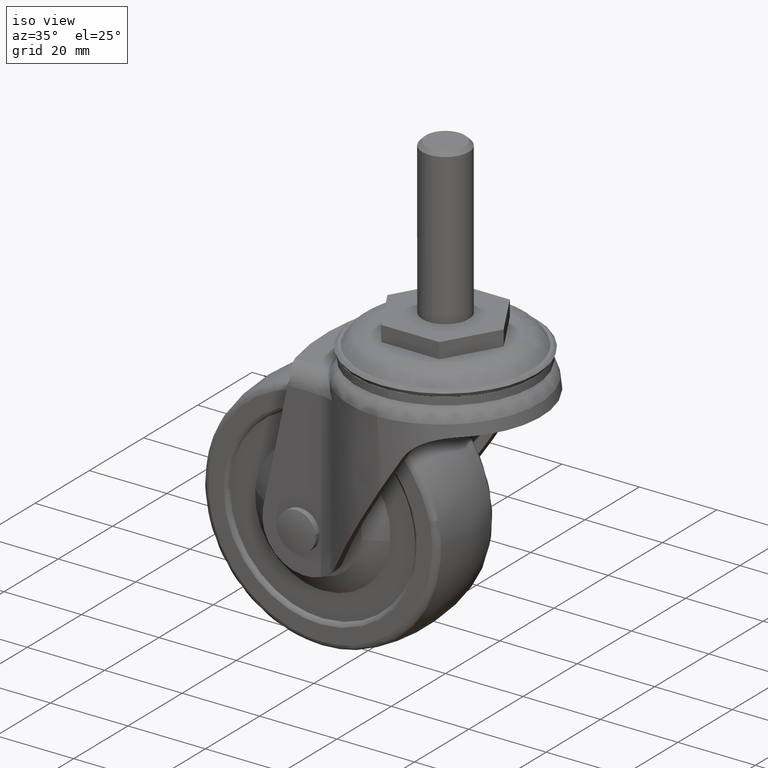
[diagram: clean part render]
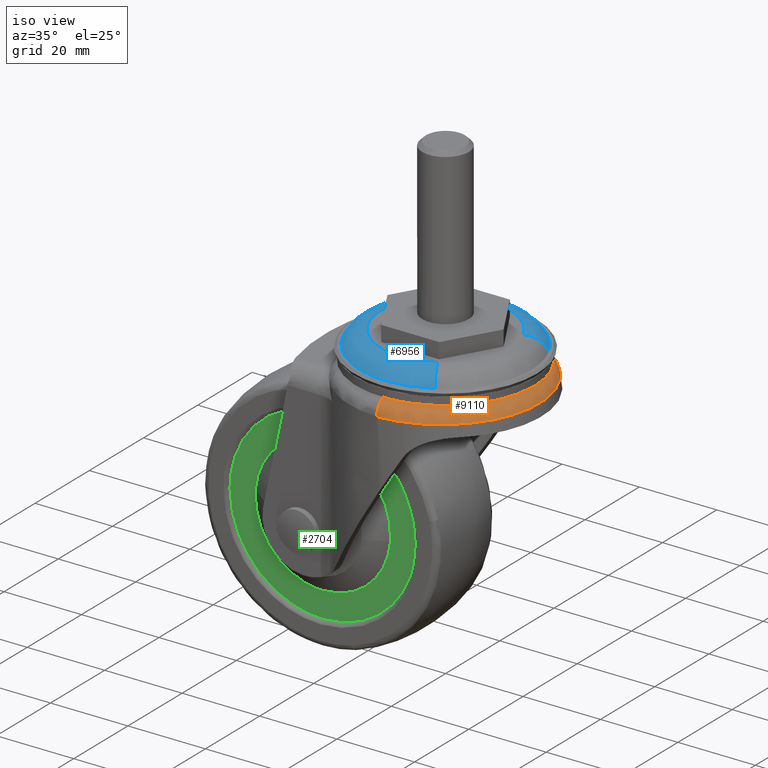
[diagram: same view with three faces highlighted in distinct colors, each labeled with its STEP entity id]
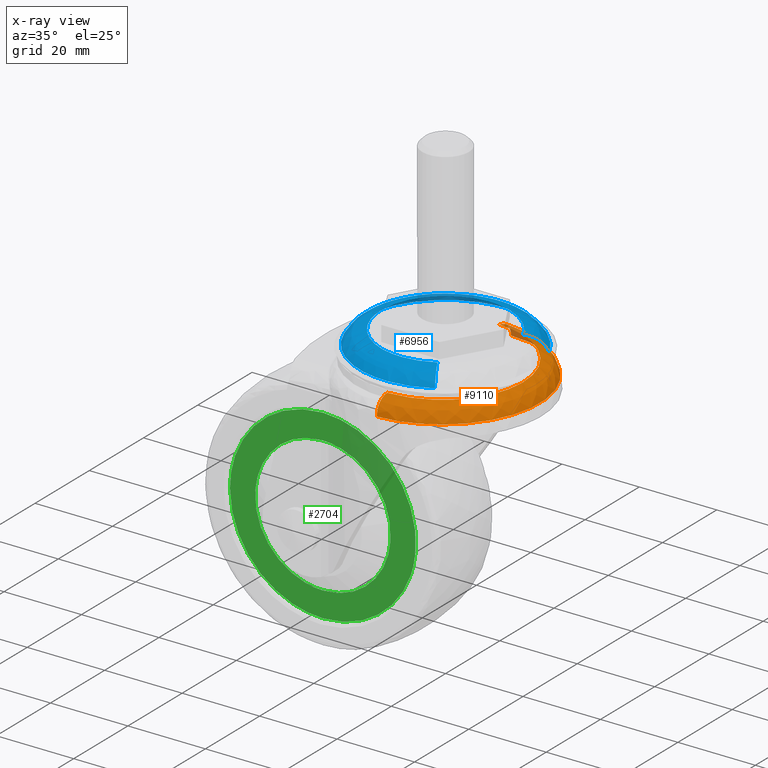
[diagram: x-ray of the same camera — body ghosted, the three highlighted faces saturated]
A machine part, iso view with three faces highlighted in distinct colors.
The next image is the same camera in x-ray (body ghosted, the three faces saturated) — at least one of them is partly hidden behind the body in this view.
Their STEP definitions:

[orange] entity #9110 — the highlighted face is a freeform B-spline surface patch.
#8668=CARTESIAN_POINT('',(-0.548214048981867,-20.742756840798400,-9.038143999999999));
#8669=VERTEX_POINT('',#8668);
#8683=CARTESIAN_POINT('',(-0.549039422027000,20.742735010433400,-9.038143999999999));
#8684=VERTEX_POINT('',#8683);
#8685=CARTESIAN_POINT('',(-0.548214048981867,-20.742756840798400,-9.038143999999999));
#8686=CARTESIAN_POINT('',(2.048933060812649,-20.673300005683060,-9.038143999999999));
#8687=CARTESIAN_POINT('',(4.626625896348884,-20.134525418431739,-9.038143999999999));
#8688=CARTESIAN_POINT('',(8.305226929931230,-18.623712663066751,-9.038143999999999));
#8689=CARTESIAN_POINT('',(9.503655719417228,-17.990379793052750,-9.038143999999999));
#8690=CARTESIAN_POINT('',(11.769736164709840,-16.499303290795151,-9.038143999999999));
#8691=CARTESIAN_POINT('',(12.847512229565259,-15.630152649064749,-9.038143999999999));
#8692=CARTESIAN_POINT('',(14.786964494903859,-13.722118109686621,-9.038143999999999));
#8693=CARTESIAN_POINT('',(15.655052400870851,-12.682964174964161,-9.038143999999999));
#8694=CARTESIAN_POINT('',(17.185796502696849,-10.434560248673320,-9.038143999999999));
#8695=CARTESIAN_POINT('',(17.847396981423550,-9.219284329836171,-9.038143999999999));
#8696=CARTESIAN_POINT('',(19.427591310467449,-5.473673701070440,-9.038143999999999));
#8697=CARTESIAN_POINT('',(19.986612036334101,-2.753023787085740,-9.038143999999999));
#8698=CARTESIAN_POINT('',(19.988121618733700,1.365446820973372,-9.038143999999999));
#8699=CARTESIAN_POINT('',(19.852032975233548,2.715366204945645,-9.038143999999999));
#8700=CARTESIAN_POINT('',(19.317864877714999,5.370121536856360,-9.038143999999999));
#8701=CARTESIAN_POINT('',(18.913138828228149,6.688818126676170,-9.038143999999999));
#8702=CARTESIAN_POINT('',(17.857187379969400,9.201220274641988,-9.038143999999999));
#8703=CARTESIAN_POINT('',(17.211213925589899,10.392028283634300,-9.038143999999999));
#8704=CARTESIAN_POINT('',(15.686525809032700,12.643370877924900,-9.038143999999999));
#8705=CARTESIAN_POINT('',(14.800190019345640,13.707329333034499,-9.038143999999999));
#8706=CARTESIAN_POINT('',(12.866834849775080,15.613625753364900,-9.038143999999999));
#8707=CARTESIAN_POINT('',(11.812946021692699,16.468481075604451,-9.038143999999999));
#8708=CARTESIAN_POINT('',(9.529442042698141,17.977052606894901,-9.038143999999999));
#8709=CARTESIAN_POINT('',(8.315690422402911,18.618031692778100,-9.038143999999999));
#8710=CARTESIAN_POINT('',(4.667025709097595,20.121626403142510,-9.038143999999999));
#8711=CARTESIAN_POINT('',(2.062181236268581,20.672394524805650,-9.038143999999999));
#8712=CARTESIAN_POINT('',(-0.549039422026997,20.742735010433400,-9.038143999999999));
#8713=B_SPLINE_CURVE_WITH_KNOTS('',3,(#8685,#8686,#8687,#8688,#8689,#8690,#8691,#8692,#8693,#8694,#8695,#8696,#8697,#8698,#8699,#8700,#8701,#8702,#8703,#8704,#8705,#8706,#8707,#8708,#8709,#8710,#8711,#8712),.UNSPECIFIED.,.F.,.U.,(4,2,2,2,2,2,2,2,2,2,2,2,2,4),(0.000425464371113,0.009569384166159,0.014354076249238,0.019138768332318,0.023923460415397,0.028708152498476,0.038277536664635,0.043062228747715,0.047846920830794,0.052631612913873,0.057416304996953,0.062200997080032,0.066985689163111,0.076132620068310),.UNSPECIFIED.);
#8714=EDGE_CURVE('',#8669,#8684,#8713,.T.);
#8851=CARTESIAN_POINT('',(-0.374123405536636,24.747172038186800,-13.036091615854801));
#8852=VERTEX_POINT('',#8851);
#8853=CARTESIAN_POINT('',(-0.549039422027000,20.742735010433400,-9.038143999999999));
#8854=CARTESIAN_POINT('',(-0.536210081858945,21.814048794033429,-9.038144000000184));
#8855=CARTESIAN_POINT('',(-0.522637618192369,22.836539412805191,-9.467033764489061));
#8856=CARTESIAN_POINT('',(-0.498822837806191,23.585907359365009,-10.222529145840710));
#8857=CARTESIAN_POINT('',(-0.487136600445700,23.953632425556460,-10.593261027809040));
#8858=CARTESIAN_POINT('',(-0.473303099994983,24.245223765448120,-11.032287344658521));
#8859=CARTESIAN_POINT('',(-0.454385978871511,24.444338018552390,-11.514776803088500));
#8860=CARTESIAN_POINT('',(-0.435464366943581,24.643499540116249,-11.997380801452779));
#8861=CARTESIAN_POINT('',(-0.414687494360466,24.746308302418232,-12.515242533139670));
#8862=CARTESIAN_POINT('',(-0.374123405536636,24.747172038186800,-13.036091615854801));
#8863=B_SPLINE_CURVE_WITH_KNOTS('',3,(#8853,#8854,#8855,#8856,#8857,#8858,#8859,#8860,#8861,#8862),.UNSPECIFIED.,.F.,.U.,(4,3,3,4),(0.0,3.214171795984935,4.791409709422802,6.369022049128073),.UNSPECIFIED.);
#8864=EDGE_CURVE('',#8684,#8852,#8863,.T.);
#8882=CARTESIAN_POINT('',(-0.910649418653940,-20.721173693812457,-9.038144000000001));
#8883=CARTESIAN_POINT('',(-0.910754478427106,-20.735267359181432,-9.038143999999996));
#8884=CARTESIAN_POINT('',(-0.940719176715463,-24.755002199936381,-9.038144000000033));
#8885=CARTESIAN_POINT('',(-0.940676419739295,-24.749266393584218,-13.058423211197045));
#8886=CARTESIAN_POINT('',(-0.940676265226869,-24.749245665893969,-13.072951439165632));
#8887=CARTESIAN_POINT('',(1.805313186808507,-20.694210956206017,-9.038144000000076));
#8888=CARTESIAN_POINT('',(1.807005114848119,-20.708314008718464,-9.038144000000044));
#8889=CARTESIAN_POINT('',(2.283757736399966,-24.682281636051840,-9.038143999988879));
#8890=CARTESIAN_POINT('',(2.282120136295682,-24.773717150237861,-13.009020306691824));
#8891=CARTESIAN_POINT('',(2.282114146283871,-24.774051602958206,-13.023544973554804));
#8892=CARTESIAN_POINT('',(4.507301235154499,-20.153077491915106,-9.038144000000038));
#8893=CARTESIAN_POINT('',(4.510775345447633,-20.166857051708963,-9.038144000000019));
#8894=CARTESIAN_POINT('',(5.479220325422688,-24.008055051380691,-9.038143999994432));
#8895=CARTESIAN_POINT('',(5.513829793248163,-24.184872330888620,-12.964594663717110));
#8896=CARTESIAN_POINT('',(5.513957759550972,-24.185526101517095,-12.979112464948390));
#8897=CARTESIAN_POINT('',(8.293188726471794,-18.598092164792895,-9.038143999999976));
#8898=CARTESIAN_POINT('',(8.299199797717421,-18.610885322924130,-9.038143999999992));
#8899=CARTESIAN_POINT('',(9.951735420320418,-22.127920585623944,-9.038144000002818));
#8900=CARTESIAN_POINT('',(10.072169610219692,-22.390030678024925,-12.905821312069758));
#8901=CARTESIAN_POINT('',(10.072621137749422,-22.391013371748681,-12.920321868630955));
#8902=CARTESIAN_POINT('',(9.489990649456402,-17.965578476601259,-9.038143999999997));
#8903=CARTESIAN_POINT('',(9.496814172419217,-17.977962778533115,-9.038143999999999));
#8904=CARTESIAN_POINT('',(11.364890984700951,-21.368414807678391,-9.038144000000024));
#8905=CARTESIAN_POINT('',(11.518587432981251,-21.651613348031109,-12.888264014521685));
#8906=CARTESIAN_POINT('',(11.519166077121676,-21.652679548179432,-12.902759140539779));
#8907=CARTESIAN_POINT('',(11.752964937419186,-16.476461951735150,-9.038144000000001));
#8908=CARTESIAN_POINT('',(11.761339723921703,-16.487867875389021,-9.038144000000003));
#8909=CARTESIAN_POINT('',(14.036729621480870,-19.586803406052070,-9.038144000000020));
#8910=CARTESIAN_POINT('',(14.261817265822511,-19.896846418984058,-12.856043612419525));
#8911=CARTESIAN_POINT('',(14.262671160135920,-19.898022600672874,-12.870527227358789));
#8912=CARTESIAN_POINT('',(12.829252358888196,-15.608469012315004,-9.038144000000015));
#8913=CARTESIAN_POINT('',(12.838370622540900,-15.619296970537183,-9.038144000000012));
#8914=CARTESIAN_POINT('',(15.307180625618756,-18.551014300722102,-9.038143999997239));
#8915=CARTESIAN_POINT('',(15.570832179225070,-18.866703786186626,-12.841090595520942));
#8916=CARTESIAN_POINT('',(15.571835846353164,-18.867905550996703,-12.855567629453068));
#8917=CARTESIAN_POINT('',(14.765997697119390,-13.703002825381576,-9.038143999999981));
#8918=CARTESIAN_POINT('',(14.776467928724683,-13.712548463009806,-9.038143999999985));
#8919=CARTESIAN_POINT('',(17.594210311424270,-16.281464675076506,-9.038144000002795));
#8920=CARTESIAN_POINT('',(17.933037731620850,-16.592651773538240,-12.815567646746603));
#8921=CARTESIAN_POINT('',(17.934335415895241,-16.593843597399005,-12.830034903443920));
#8922=CARTESIAN_POINT('',(15.632862463007514,-12.665260018673131,-9.038143999999992));
#8923=CARTESIAN_POINT('',(15.643943604259452,-12.674101064457734,-9.038143999999992));
#8924=CARTESIAN_POINT('',(18.618300920183469,-15.047180570619064,-9.038144000001401));
#8925=CARTESIAN_POINT('',(18.993866525030157,-15.348454688290174,-12.804788958739405));
#8926=CARTESIAN_POINT('',(18.995308683256166,-15.349611569914796,-12.819252738014134));
#8927=CARTESIAN_POINT('',(17.161432529543681,-10.419940984802802,-9.038144000000008));
#8928=CARTESIAN_POINT('',(17.173599538531175,-10.427241629643643,-9.038144000000004));
#8929=CARTESIAN_POINT('',(20.424710906375985,-12.378025874075890,-9.038143999998631));
#8930=CARTESIAN_POINT('',(20.868259718079486,-12.645662979359697,-12.786214199692294));
#8931=CARTESIAN_POINT('',(20.869970637681501,-12.646695347292086,-12.800671789488941));
#8932=CARTESIAN_POINT('',(17.822086387060949,-9.206345742940515,-9.038143999999976));
#8933=CARTESIAN_POINT('',(17.834726214425906,-9.212807128333710,-9.038143999999988));
#8934=CARTESIAN_POINT('',(21.205777223149298,-10.936063239241779,-9.038144000002792));
#8935=CARTESIAN_POINT('',(21.680560196296817,-11.179724693610332,-12.778455326952182));
#8936=CARTESIAN_POINT('',(21.682395074931826,-11.180666364272680,-12.792910389012716));
#8937=CARTESIAN_POINT('',(19.399996752698122,-5.465959097901339,-9.038144000000042));
#8938=CARTESIAN_POINT('',(19.413777396754934,-5.469811748891494,-9.038144000000017));
#8939=CARTESIAN_POINT('',(23.072709475227477,-6.492738415956596,-9.038143999994480));
#8940=CARTESIAN_POINT('',(23.624236992307239,-6.650451857648111,-12.760996841217619));
#8941=CARTESIAN_POINT('',(23.626378004752038,-6.651064096259815,-12.775448838654455));
#8942=CARTESIAN_POINT('',(19.958195948940222,-2.749136459886930,-9.038143999999953));
#8943=CARTESIAN_POINT('',(19.972386943132062,-2.751077791110171,-9.038143999999981));
#8944=CARTESIAN_POINT('',(23.734593312933551,-3.265748475576549,-9.038144000005635));
#8945=CARTESIAN_POINT('',(24.316047188124834,-3.345294747597104,-12.755777747475085));
#8946=CARTESIAN_POINT('',(24.318307781590075,-3.345604009931377,-12.770231273221913));
#8947=CARTESIAN_POINT('',(19.959703558480516,1.363518773498466,-9.038144000000019));
#8948=CARTESIAN_POINT('',(19.973895538139818,1.364481640432460,-9.038144000000008));
#8949=CARTESIAN_POINT('',(23.736347576813934,1.619748399950552,-9.038143999997201));
#8950=CARTESIAN_POINT('',(24.317875155100563,1.659201820739618,-12.755736051128258));
#8951=CARTESIAN_POINT('',(24.320136044481540,1.659355209544270,-12.770189474671730));
#8952=CARTESIAN_POINT('',(19.823815678620058,2.711533643453680,-9.038143999999969));
#8953=CARTESIAN_POINT('',(19.837907377245173,2.713447622040884,-9.038143999999983));
#8954=CARTESIAN_POINT('',(23.575158671586710,3.221052783253829,-9.038144000004175));
#8955=CARTESIAN_POINT('',(24.149532701176785,3.299494879433808,-12.756953950835037));
#8956=CARTESIAN_POINT('',(24.151764950984223,3.299799737148595,-12.771406750524894));
#8957=CARTESIAN_POINT('',(19.290429308068042,5.362554559707317,-9.038144000000035));
#8958=CARTESIAN_POINT('',(19.304130536876993,5.366333481983958,-9.038144000000017));
#8959=CARTESIAN_POINT('',(22.943179420070827,6.370015931363274,-9.038143999995869));
#8960=CARTESIAN_POINT('',(23.490205431519307,6.521331016722868,-12.762230354695710));
#8961=CARTESIAN_POINT('',(23.492328267366425,6.521918222962952,-12.776682362179915));
#8962=CARTESIAN_POINT('',(18.886291724168117,6.679404296666067,-9.038143999999996));
#8963=CARTESIAN_POINT('',(18.899699018798014,6.684105511078577,-9.038144000000001));
#8964=CARTESIAN_POINT('',(22.464674129429099,7.934149821507168,-9.038144000000012));
#8965=CARTESIAN_POINT('',(22.991194765180182,8.119683079647171,-12.766473113680146));
#8966=CARTESIAN_POINT('',(22.993235735741870,8.120402268777408,-12.780925367682251));
#8967=CARTESIAN_POINT('',(17.831864034224711,9.188307409330340,-9.038144000000001));
#8968=CARTESIAN_POINT('',(17.844510230819672,9.194755950332061,-9.038144000000001));
#8969=CARTESIAN_POINT('',(21.217165010805335,10.914538057946208,-9.038144000000010));
#8970=CARTESIAN_POINT('',(21.692387558202796,11.157826071713728,-12.778178380199948));
#8971=CARTESIAN_POINT('',(21.694224187339888,11.158766325616316,-12.792632778784311));
#8972=CARTESIAN_POINT('',(17.186816901414769,10.377469638392652,-9.038144000000010));
#8973=CARTESIAN_POINT('',(17.199000418958740,10.384740013191013,-9.038144000000003));
#8974=CARTESIAN_POINT('',(20.454282556256558,12.327292410491738,-9.038143999998631));
#8975=CARTESIAN_POINT('',(20.898949718751297,12.594124782315969,-12.785491246262948));
#8976=CARTESIAN_POINT('',(20.900665078931045,12.595154122154616,-12.799947115254676));
#8977=CARTESIAN_POINT('',(15.664295010462885,12.625723603571984,-9.038143999999990));
#8978=CARTESIAN_POINT('',(15.675396560511977,12.634536246934466,-9.038143999999992));
#8979=CARTESIAN_POINT('',(18.654950170275626,14.999768419571046,-9.038144000001401));
#8980=CARTESIAN_POINT('',(19.031809150145676,15.300546431240161,-12.803877892984080));
#8981=CARTESIAN_POINT('',(19.033256411761165,15.301701517079499,-12.818339541527948));
#8982=CARTESIAN_POINT('',(14.779206081055992,13.688235379956410,-9.038143999999964));
#8983=CARTESIAN_POINT('',(14.789684873719933,13.697770366796279,-9.038143999999987));
#8984=CARTESIAN_POINT('',(17.609617335151892,16.263716632875447,-9.038144000004174));
#8985=CARTESIAN_POINT('',(17.948970038090621,16.574770319261617,-12.815181631748574));
#8986=CARTESIAN_POINT('',(17.950269786652949,16.575961680279775,-12.829647994294836));
#8987=CARTESIAN_POINT('',(12.848549956256065,15.591966331174781,-9.038144000000035));
#8988=CARTESIAN_POINT('',(12.857680717413128,15.602782200056501,-9.038144000000012));
#8989=CARTESIAN_POINT('',(15.329721981006195,18.531045651187046,-9.038143999995860));
#8990=CARTESIAN_POINT('',(15.594063042427358,18.846756224784738,-12.840513141701219));
#8991=CARTESIAN_POINT('',(15.595069396459243,18.847958144028535,-12.854988870503643));
#8992=CARTESIAN_POINT('',(11.796118728141757,16.445685689211160,-9.038143999999992));
#8993=CARTESIAN_POINT('',(11.804521515977628,16.457068672156076,-9.038143999999996));
#8994=CARTESIAN_POINT('',(14.087194253298058,19.549331067123113,-9.038144000001417));
#8995=CARTESIAN_POINT('',(14.313692944461447,19.859692997715893,-12.854729735512791));
#8996=CARTESIAN_POINT('',(14.314552314094563,19.860870556919679,-12.869210427945990));
#8997=CARTESIAN_POINT('',(9.515743484520222,17.952271939040614,-9.038144000000006));
#8998=CARTESIAN_POINT('',(9.522583731747783,17.964645934346240,-9.038144000000008));
#8999=CARTESIAN_POINT('',(11.395070997705595,21.351972132943121,-9.038143999998626));
#9000=CARTESIAN_POINT('',(11.549471640303505,21.635587527415176,-12.887456451166935));
#9001=CARTESIAN_POINT('',(11.550052987842646,21.636655392864867,-12.901949838521171));
#9002=CARTESIAN_POINT('',(8.303638799229566,18.592419841314911,-9.038144000000017));
#9003=CARTESIAN_POINT('',(8.309656572171946,18.605208683491814,-9.038144000000008));
#9004=CARTESIAN_POINT('',(9.963974690277093,22.120930118217501,-9.038143999997249));
#9005=CARTESIAN_POINT('',(10.084707142438873,22.383198607133558,-12.905495643789564));
#9006=CARTESIAN_POINT('',(10.085159804596936,22.384181930325123,-12.919995504512547));
#9007=CARTESIAN_POINT('',(4.549374010106003,20.139645507451259,-9.038143999999955));
#9008=CARTESIAN_POINT('',(4.552875168594873,20.153413880706104,-9.038143999999978));
#9009=CARTESIAN_POINT('',(5.528704044375851,23.990879747307559,-9.038144000005552));
#9010=CARTESIAN_POINT('',(5.564120821341387,24.168741100886436,-12.963218653388548));
#9011=CARTESIAN_POINT('',(5.564251793567390,24.169398837117519,-12.977733688595867));
#9012=CARTESIAN_POINT('',(1.817718507516348,20.694091891294661,-9.038143999999880));
#9013=CARTESIAN_POINT('',(1.819418858653512,20.708195011205312,-9.038143999999933));
#9014=CARTESIAN_POINT('',(2.298516869680492,24.681948755822894,-9.038144000016812));
#9015=CARTESIAN_POINT('',(2.296858007845401,24.773828992115213,-13.008790245363260));
#9016=CARTESIAN_POINT('',(2.296851939706786,24.774165091239169,-13.023314922035073));
#9017=CARTESIAN_POINT('',(-0.910649418653911,20.721173693812457,-9.038144000000001));
#9018=CARTESIAN_POINT('',(-0.910754478427077,20.735267359181432,-9.038143999999996));
#9019=CARTESIAN_POINT('',(-0.940719176715434,24.755002199936346,-9.038144000000019));
#9020=CARTESIAN_POINT('',(-0.940676419739267,24.749266393584218,-13.058423211197045));
#9021=CARTESIAN_POINT('',(-0.940676265226841,24.749245665893969,-13.072951439165632));
#9029=(BOUNDED_SURFACE()B_SPLINE_SURFACE(2,3,((#8882,#8887,#8892,#8897,#8902,#8907,#8912,#8917,#8922,#8927,#8932,#8937,#8942,#8947,#8952,#8957,#8962,#8967,#8972,#8977,#8982,#8987,#8992,#8997,#9002,#9007,#9012,#9017),(#8883,#8888,#8893,#8898,#8903,#8908,#8913,#8918,#8923,#8928,#8933,#8938,#8943,#8948,#8953,#8958,#8963,#8968,#8973,#8978,#8983,#8988,#8993,#8998,#9003,#9008,#9013,#9018),(#8884,#8889,#8894,#8899,#8904,#8909,#8914,#8919,#8924,#8929,#8934,#8939,#8944,#8949,#8954,#8959,#8964,#8969,#8974,#8979,#8984,#8989,#8994,#8999,#9004,#9009,#9014,#9019),(#8885,#8890,#8895,#8900,#8905,#8910,#8915,#8920,#8925,#8930,#8935,#8940,#8945,#8950,#8955,#8960,#8965,#8970,#8975,#8980,#8985,#8990,#8995,#9000,#9005,#9010,#9015,#9020),(#8886,#8891,#8896,#8901,#8906,#8911,#8916,#8921,#8926,#8931,#8936,#8941,#8946,#8951,#8956,#8961,#8966,#8971,#8976,#8981,#8986,#8991,#8996,#9001,#9006,#9011,#9016,#9021)),.UNSPECIFIED.,.F.,.F.,.U.)B_SPLINE_SURFACE_WITH_KNOTS((3,1,1,3),(4,2,2,2,2,2,2,2,2,2,2,2,2,4),(0.0,0.033179759591955,6.667283945417479,6.701490498964946),(0.0,9.953699025322743,14.930548537984100,19.907398050645480,24.884247563306861,29.861097075968239,39.814796101290959,44.791645613952333,49.768495126613722,54.745344639275103,59.722194151936478,64.699043664597866,69.675893177259240,79.629592202581904),.UNSPECIFIED.)GEOMETRIC_REPRESENTATION_ITEM()RATIONAL_B_SPLINE_SURFACE(((1.002934795507469,1.002849243578525,1.002772296761046,1.002671897825353,1.002641455930546,1.002585652258668,1.002560067635529,1.002515185419121,1.002495714008103,1.002462000169578,1.002447789182284,1.002414230826511,1.002402862671879,1.002402831416746,1.002405626472206,1.002416719661126,1.002425157435757,1.002447578174036,1.002461447367778,1.002495009390171,1.002514885313217,1.002559611897163,1.002584604017924,1.002640799696889,1.002671634297192,1.002771148591760,1.002848827328285,1.002934795507469),(1.001467397753735,1.001424621789262,1.001386148380523,1.001335948912676,1.001320727965273,1.001292826129334,1.001280033817764,1.001257592709561,1.001247857004052,1.001231000084789,1.001223894591142,1.001207115413256,1.001201431335939,1.001201415708373,1.001202813236103,1.001208359830563,1.001212578717878,1.001223789087018,1.001230723683889,1.001247504695086,1.001257442656608,1.001279805948582,1.001292302008962,1.001320399848444,1.001335817148596,1.001385574295880,1.001424413664143,1.001467397753735),(0.706602166500258,0.715154977263443,0.722847516483147,0.732884614517086,0.735927956365348,0.741506769740435,0.744064519669167,0.748551491597205,0.750498090531733,0.753868535646945,0.755289238681744,0.758644139851010,0.759780638776241,0.759783763419257,0.759504335699514,0.758395325689267,0.757551783169943,0.755310333631134,0.753923800434576,0.750568532705375,0.748581493831451,0.744110080815985,0.741611564627334,0.735993561458720,0.732910959995441,0.722962301441842,0.715196590697231,0.706602166500259),(1.001512808424650,1.001468708698272,1.001429044676218,1.001377291715797,1.001361599734939,1.001332834437756,1.001319646250256,1.001296510670648,1.001286473680148,1.001269095099998,1.001261769716936,1.001244471283979,1.001238611304959,1.001238595193776,1.001240035969951,1.001245754211516,1.001250103658186,1.001261660947840,1.001268810145487,1.001286110468489,1.001296355974097,1.001319411329344,1.001332294097748,1.001361261464077,1.001377155874093,1.001428452825725,1.001468494132430,1.001512808424650),(1.003025616849299,1.002937417396545,1.002858089352437,1.002754583431595,1.002723199469878,1.002665668875513,1.002639292500512,1.002593021341295,1.002572947360295,1.002538190199997,1.002523539433872,1.002488942567957,1.002477222609918,1.002477190387551,1.002480071939903,1.002491508423032,1.002500207316371,1.002523321895680,1.002537620290974,1.002572220936978,1.002592711948195,1.002638822658688,1.002664588195496,1.002722522928155,1.002754311748187,1.002856905651450,1.002936988264861,1.003025616849299)))REPRESENTATION_ITEM('')SURFACE());
#9030=CARTESIAN_POINT('',(-0.372490450672473,-24.747196701459401,-13.035959580757240));
#9031=VERTEX_POINT('',#9030);
#9032=CARTESIAN_POINT('',(-0.548214048981867,-20.742756840798400,-9.038143999999999));
#9033=CARTESIAN_POINT('',(-0.546158135271906,-20.914352315119050,-9.044569300708560));
#9034=CARTESIAN_POINT('',(-0.541818712765087,-21.276539336747280,-9.058131199913145));
#9035=CARTESIAN_POINT('',(-0.534374495546348,-21.838456177026131,-9.176323497465626));
#9036=CARTESIAN_POINT('',(-0.525059100475621,-22.431123119078151,-9.391205179896234));
#9037=CARTESIAN_POINT('',(-0.513052195841334,-23.030676998924520,-9.730142927228712));
#9038=CARTESIAN_POINT('',(-0.497829404701853,-23.603856261626952,-10.205431901554880));
#9039=CARTESIAN_POINT('',(-0.478902809443609,-24.076324047395950,-10.782383612536879));
#9040=CARTESIAN_POINT('',(-0.456628630633876,-24.407217687756599,-11.386709543924260));
#9041=CARTESIAN_POINT('',(-0.434282109292794,-24.602318501657450,-11.932122557117390));
#9042=CARTESIAN_POINT('',(-0.412476716593068,-24.700780350312769,-12.391164835689340));
#9043=CARTESIAN_POINT('',(-0.393595841285878,-24.741412165953250,-12.749211672322730));
#9044=CARTESIAN_POINT('',(-0.378634589878759,-24.745519815565000,-12.952502676989090));
#9045=CARTESIAN_POINT('',(-0.372490450672473,-24.747196701459401,-13.035959580757240));
#9046=B_SPLINE_CURVE_WITH_KNOTS('',3,(#9032,#9033,#9034,#9035,#9036,#9037,#9038,#9039,#9040,#9041,#9042,#9043,#9044,#9045),.UNSPECIFIED.,.F.,.U.,(4,1,1,1,1,1,1,1,1,1,1,4),(0.000118600140761,0.082028365781089,0.173005759181441,0.273046835071027,0.382147087178476,0.500301371811840,0.626778824541121,0.736009710879474,0.827973230075234,0.902652720469437,0.960036256168950,1.0),.UNSPECIFIED.);
#9047=EDGE_CURVE('',#8669,#9031,#9046,.T.);
#9048=ORIENTED_EDGE('',*,*,#9047,.T.);
#9049=CARTESIAN_POINT('',(-0.374123405536636,24.747172038186800,-13.036091615854801));
#9050=CARTESIAN_POINT('',(-0.130458357808917,24.741544482917838,-13.032389946790310));
#9051=CARTESIAN_POINT('',(0.355813692695487,24.730313808410010,-13.025002682087971));
#9052=CARTESIAN_POINT('',(1.082644272773470,24.687084002757238,-13.013935448175060));
#9053=CARTESIAN_POINT('',(1.804834377046261,24.624905831932349,-13.002969377928860));
#9054=CARTESIAN_POINT('',(2.521788524342565,24.542194482832780,-12.992141906778389));
#9055=CARTESIAN_POINT('',(3.232962482304202,24.439775020553419,-12.981491260380659));
#9056=CARTESIAN_POINT('',(3.937818590192311,24.317848533367989,-12.971049535610200));
#9057=CARTESIAN_POINT('',(4.635837978741973,24.176798777337719,-12.960844751499060));
#9058=CARTESIAN_POINT('',(5.326517606978340,24.016976541934898,-12.950900514134419));
#9059=CARTESIAN_POINT('',(6.009371303302414,23.838756126778129,-12.941236317745080));
#9060=CARTESIAN_POINT('',(6.683929704557595,23.642519399308618,-12.931867677019479));
#9061=CARTESIAN_POINT('',(7.349740453058637,23.428659135496670,-12.922806304410550));
#9062=CARTESIAN_POINT('',(8.006368290527048,23.197577237915208,-12.914060275062530));
#9063=CARTESIAN_POINT('',(8.653395145956882,22.949684327541650,-12.905634194179241));
#9064=CARTESIAN_POINT('',(9.290420192540250,22.685398981344171,-12.897529362467180));
#9065=CARTESIAN_POINT('',(9.917059881251266,22.405147076371200,-12.889743940415871));
#9066=CARTESIAN_POINT('',(10.532947950024811,22.109361118620729,-12.882273110822860));
#9067=CARTESIAN_POINT('',(11.137735409926201,21.798479589704279,-12.875109239425210));
#9068=CARTESIAN_POINT('',(11.731090508545670,21.472946303849621,-12.868242033123110));
#9069=CARTESIAN_POINT('',(12.312698673093200,21.133209775705449,-12.861658696446749));
#9070=CARTESIAN_POINT('',(12.882262427954990,20.779722607628120,-12.855344082755931));
#9071=CARTESIAN_POINT('',(13.439501309929661,20.412940864462769,-12.849280852153640));
#9072=CARTESIAN_POINT('',(13.984151698979719,20.033323557004550,-12.843449590768939));
#9073=CARTESIAN_POINT('',(14.515966872780520,19.641331786922720,-12.837829058549019));
#9074=CARTESIAN_POINT('',(15.034716146764101,19.237429211858789,-12.832395945524020));
#9075=CARTESIAN_POINT('',(15.540187320711620,18.822077687058862,-12.827126432947180));
#9076=CARTESIAN_POINT('',(16.032176798002169,18.395750845316940,-12.821991051185270));
#9077=CARTESIAN_POINT('',(16.510525298437589,17.958881293532041,-12.816974352867540));
#9078=CARTESIAN_POINT('',(17.996397118231702,16.529416141139890,-12.801069135436920));
#9079=CARTESIAN_POINT('',(20.231106405518030,13.839944251130250,-12.777948408507870));
#9080=CARTESIAN_POINT('',(22.561868195208419,9.523807492263385,-12.756407204733691));
#9081=CARTESIAN_POINT('',(23.993296327419021,4.848010729088862,-12.744476706387969));
#9082=CARTESIAN_POINT('',(24.474723874414231,-0.008665492077881,-12.740888424551970));
#9083=CARTESIAN_POINT('',(23.990228497122910,-4.865948260870710,-12.744576615940410));
#9084=CARTESIAN_POINT('',(22.554635305592349,-9.543106351715748,-12.756666511912330));
#9085=CARTESIAN_POINT('',(20.219265988969980,-13.859068627631210,-12.778281490666391));
#9086=CARTESIAN_POINT('',(17.861483621136600,-16.691376132349550,-12.802759263937890));
#9087=CARTESIAN_POINT('',(16.083591613923691,-18.360374793667219,-12.821653651945820));
#9088=CARTESIAN_POINT('',(15.157670411913060,-19.148650290056629,-12.831250190442899));
#9089=CARTESIAN_POINT('',(14.185494377837079,-19.897412837932830,-12.841423835690390));
#9090=CARTESIAN_POINT('',(13.168404240075830,-20.603757814157269,-12.852294575218460));
#9091=CARTESIAN_POINT('',(12.108027012047470,-21.264673354008409,-12.864009449480720));
#9092=CARTESIAN_POINT('',(11.006168945158221,-21.877213664393349,-12.876678629840850));
#9093=CARTESIAN_POINT('',(9.864848166488333,-22.438467790613991,-12.890388614095370));
#9094=CARTESIAN_POINT('',(8.686288420223562,-22.945588841863689,-12.905194322240710));
#9095=CARTESIAN_POINT('',(7.472922038185852,-23.395791661307548,-12.921116741997730));
#9096=CARTESIAN_POINT('',(6.227390115393146,-23.786419473917860,-12.938139085370549));
#9097=CARTESIAN_POINT('',(4.952538818826319,-24.114766371924588,-12.956202727267691));
#9098=CARTESIAN_POINT('',(3.651428136892319,-24.378820858177960,-12.975205128075830));
#9099=CARTESIAN_POINT('',(2.327287740419298,-24.574531182005732,-12.994989658779190));
#9100=CARTESIAN_POINT('',(0.983667482278854,-24.706215679880881,-13.015366063020750));
#9101=CARTESIAN_POINT('',(0.080786570143916,-24.733499362145320,-13.029076482453631));
#9102=CARTESIAN_POINT('',(-0.372490450672473,-24.747196701459401,-13.035959580757240));
#9103=B_SPLINE_CURVE_WITH_KNOTS('',3,(#9049,#9050,#9051,#9052,#9053,#9054,#9055,#9056,#9057,#9058,#9059,#9060,#9061,#9062,#9063,#9064,#9065,#9066,#9067,#9068,#9069,#9070,#9071,#9072,#9073,#9074,#9075,#9076,#9077,#9078,#9079,#9080,#9081,#9082,#9083,#9084,#9085,#9086,#9087,#9088,#9089,#9090,#9091,#9092,#9093,#9094,#9095,#9096,#9097,#9098,#9099,#9100,#9101,#9102),.UNSPECIFIED.,.F.,.U.,(4,1,1,1,1,1,1,1,1,1,1,1,1,1,1,1,1,1,1,1,1,1,1,1,1,1,1,1,1,1,1,1,1,1,1,1,1,1,1,1,1,1,1,1,1,1,1,1,1,1,1,4),(0.0,0.009442116681211,0.018843233703363,0.028203289980840,0.037522225925448,0.046799983733348,0.056036507667265,0.065231744333329,0.074385642951931,0.083498155621978,0.092569237577956,0.101598847439252,0.110586947451162,0.119533503717109,0.128438486421558,0.137301870043179,0.146123633557860,0.154903760631141,0.163642239799764,0.172339064641978,0.180994233936362,0.189607751808888,0.198179627868043,0.206709877327841,0.215198521118585,0.223645585985304,0.232051104573805,0.240415115504328,0.248737663432825,0.311926334616222,0.374857012576574,0.437568144037476,0.500106792519258,0.562687560567406,0.625432358919227,0.688388312192617,0.751593919322072,0.767145727228615,0.782841441120179,0.798681297887720,0.814665463038795,0.830794032688197,0.847067036066244,0.863484438537450,0.880046145116743,0.896752004464897,0.913601813339430,0.930595321471984,0.947732236838279,0.965012231282224,0.982434946451680,1.0),.UNSPECIFIED.);
#9104=EDGE_CURVE('',#8852,#9031,#9103,.T.);
#9105=ORIENTED_EDGE('',*,*,#9104,.F.);
#9106=ORIENTED_EDGE('',*,*,#8864,.F.);
#9107=ORIENTED_EDGE('',*,*,#8714,.F.);
#9108=EDGE_LOOP('',(#9048,#9105,#9106,#9107));
#9109=FACE_OUTER_BOUND('',#9108,.T.);
#9110=ADVANCED_FACE('',(#9109),#9029,.T.);

[blue] entity #6956 — the highlighted face is a freeform B-spline surface patch.
#6821=CARTESIAN_POINT('',(7.962882018397973,-14.248680452016858,-2.008414574485836));
#6822=CARTESIAN_POINT('',(7.555091299018574,-14.476574494384565,-2.008414574485835));
#6823=CARTESIAN_POINT('',(7.134934287021710,-14.680773051256370,-2.008414574485836));
#6824=CARTESIAN_POINT('',(-7.545838764234653,-21.815707338278077,-2.008414574485836));
#6825=CARTESIAN_POINT('',(-14.680773051256361,-7.134934287021713,-2.008414574485836));
#6826=CARTESIAN_POINT('',(-21.815707338278077,7.545838764234653,-2.008414574485836));
#6827=CARTESIAN_POINT('',(-7.134934287021713,14.680773051256361,-2.008414574485836));
#6828=CARTESIAN_POINT('',(7.545838764234651,21.815707338278077,-2.008414574485836));
#6829=CARTESIAN_POINT('',(14.680773051256361,7.134934287021713,-2.008414574485836));
#6830=CARTESIAN_POINT('',(10.079471763450117,-18.036079393202165,-1.778086509128887));
#6831=CARTESIAN_POINT('',(9.563287418148390,-18.324549266270282,-1.778086509128888));
#6832=CARTESIAN_POINT('',(9.031449733142734,-18.583025228035275,-1.778086509128887));
#6833=CARTESIAN_POINT('',(-9.551575494892541,-27.614474961178008,-1.778086509128887));
#6834=CARTESIAN_POINT('',(-18.583025228035275,-9.031449733142734,-1.778086509128887));
#6835=CARTESIAN_POINT('',(-27.614474961178008,9.551575494892539,-1.778086509128887));
#6836=CARTESIAN_POINT('',(-9.031449733142734,18.583025228035275,-1.778086509128887));
#6837=CARTESIAN_POINT('',(9.551575494892536,27.614474961178008,-1.778086509128887));
#6838=CARTESIAN_POINT('',(18.583025228035275,9.031449733142736,-1.778086509128887));
#6839=CARTESIAN_POINT('',(10.881622136904607,-19.471437134207395,-5.799740004887266));
#6840=CARTESIAN_POINT('',(10.324358509367416,-19.782864184183445,-5.799740004887264));
#6841=CARTESIAN_POINT('',(9.750195808958527,-20.061910329994266,-5.799740004887263));
#6842=CARTESIAN_POINT('',(-10.311714521035734,-29.812106138952789,-5.799740004887265));
#6843=CARTESIAN_POINT('',(-20.061910329994266,-9.750195808958530,-5.799740004887263));
#6844=CARTESIAN_POINT('',(-29.812106138952789,10.311714521035734,-5.799740004887265));
#6845=CARTESIAN_POINT('',(-9.750195808958530,20.061910329994266,-5.799740004887263));
#6846=CARTESIAN_POINT('',(10.311714521035730,29.812106138952789,-5.799740004887265));
#6847=CARTESIAN_POINT('',(20.061910329994266,9.750195808958532,-5.799740004887263));
#6855=(BOUNDED_SURFACE()B_SPLINE_SURFACE(2,2,((#6821,#6830,#6839),(#6822,#6831,#6840),(#6823,#6832,#6841),(#6824,#6833,#6842),(#6825,#6834,#6843),(#6826,#6835,#6844),(#6827,#6836,#6845),(#6828,#6837,#6846),(#6829,#6838,#6847)),.UNSPECIFIED.,.F.,.F.,.U.)B_SPLINE_SURFACE_WITH_KNOTS((3,2,2,2,3),(3,3),(0.0,1.478293778048808,38.435673474572830,75.393053171096852,112.350432867620900),(0.0,7.804549415860513),.UNSPECIFIED.)GEOMETRIC_REPRESENTATION_ITEM()RATIONAL_B_SPLINE_SURFACE(((0.902666293243279,0.735626562391424,0.902281848518384),(0.912619536779738,0.743737943509979,0.912230852977787),(0.923438278856971,0.752554661385949,0.923044987362949),(0.652969468986998,0.532136504279551,0.652691369904592),(0.923438278856971,0.752554661385949,0.923044987362949),(0.652969468986998,0.532136504279551,0.652691369904592),(0.923438278856971,0.752554661385949,0.923044987362949),(0.652969468986998,0.532136504279551,0.652691369904592),(0.923438278856971,0.752554661385949,0.923044987362949)))REPRESENTATION_ITEM('')SURFACE());
#6856=CARTESIAN_POINT('',(8.120989754095017,-14.531594552788100,-1.999818000000204));
#6857=VERTEX_POINT('',#6856);
#6858=CARTESIAN_POINT('',(-16.646853000000000,0.0,-1.999818000000205));
#6859=VERTEX_POINT('',#6858);
#6860=CARTESIAN_POINT('',(8.120989754095017,-14.531594552788098,-1.999818000000204));
#6861=CARTESIAN_POINT('',(4.335973509239508,-16.646853000000007,-1.999818000000206));
#6862=CARTESIAN_POINT('',(0.0,-16.646853000000000,-1.999818000000205));
#6863=CARTESIAN_POINT('',(-16.646852999999997,-16.646852999999997,-1.999818000000205));
#6864=CARTESIAN_POINT('',(-16.646853000000000,0.0,-1.999818000000205));
#6872=(BOUNDED_CURVE()B_SPLINE_CURVE(2,(#6860,#6861,#6862,#6863,#6864),.UNSPECIFIED.,.F.,.U.)B_SPLINE_CURVE_WITH_KNOTS((3,2,3),(0.666878557042531,0.750000000000000,1.0),.UNSPECIFIED.)CURVE()GEOMETRIC_REPRESENTATION_ITEM()RATIONAL_B_SPLINE_CURVE((0.869991153566676,0.902617172079072,1.0,0.707106781186548,1.0))REPRESENTATION_ITEM(''));
#6873=EDGE_CURVE('',#6857,#6859,#6872,.T.);
#6874=ORIENTED_EDGE('',*,*,#6873,.T.);
#6875=CARTESIAN_POINT('',(14.972267012225050,7.276601912651207,-1.999818000000204));
#6876=VERTEX_POINT('',#6875);
#6877=CARTESIAN_POINT('',(-16.646853000000000,0.0,-1.999818000000205));
#6878=CARTESIAN_POINT('',(-16.646852999999997,16.646852999999997,-1.999818000000205));
#6879=CARTESIAN_POINT('',(0.0,16.646853000000000,-1.999818000000205));
#6880=CARTESIAN_POINT('',(10.418274823227746,16.646853000000000,-1.999818000000205));
#6881=CARTESIAN_POINT('',(14.972267012225053,7.276601912651207,-1.999818000000204));
#6889=(BOUNDED_CURVE()B_SPLINE_CURVE(2,(#6877,#6878,#6879,#6880,#6881),.UNSPECIFIED.,.F.,.U.)B_SPLINE_CURVE_WITH_KNOTS((3,2,3),(0.0,0.250000000000000,0.425716704548663),.UNSPECIFIED.)CURVE()GEOMETRIC_REPRESENTATION_ITEM()RATIONAL_B_SPLINE_CURVE((1.0,0.707106781186548,1.0,0.794135075221798,0.877661399757069))REPRESENTATION_ITEM(''));
#6890=EDGE_CURVE('',#6859,#6876,#6889,.T.);
#6891=ORIENTED_EDGE('',*,*,#6890,.T.);
#6892=CARTESIAN_POINT('',(19.944387011216310,9.693078846963481,-5.502882999975987));
#6893=VERTEX_POINT('',#6892);
#6894=CARTESIAN_POINT('',(14.972267012225053,7.276601912651207,-1.999818000000204));
#6895=CARTESIAN_POINT('',(18.456568538353924,8.969991105052742,-1.999818002929436));
#6896=CARTESIAN_POINT('',(19.944387011216318,9.693078846963479,-5.502882999975987));
#6904=(BOUNDED_CURVE()B_SPLINE_CURVE(2,(#6894,#6895,#6896),.UNSPECIFIED.,.F.,.U.)B_SPLINE_CURVE_WITH_KNOTS((3,3),(-1.660522672520723,-0.341149091722281),.UNSPECIFIED.)CURVE()GEOMETRIC_REPRESENTATION_ITEM()RATIONAL_B_SPLINE_CURVE((0.908621533298748,0.767353533825573,0.908263987978920))REPRESENTATION_ITEM(''));
#6905=EDGE_CURVE('',#6876,#6893,#6904,.T.);
#6906=ORIENTED_EDGE('',*,*,#6905,.T.);
#6907=CARTESIAN_POINT('',(-22.175084008569851,0.0,-5.502883000000110));
#6908=VERTEX_POINT('',#6907);
#6909=CARTESIAN_POINT('',(-22.175084008569851,0.0,-5.502883000000110));
#6910=CARTESIAN_POINT('',(-22.175084008569861,22.175084008569861,-5.502883000000109));
#6911=CARTESIAN_POINT('',(0.0,22.175084008569851,-5.502883000000110));
#6912=CARTESIAN_POINT('',(13.878065688251059,22.175084008569854,-5.502883000000111));
#6913=CARTESIAN_POINT('',(19.944387011216318,9.693078846963481,-5.502882999975987));
#6921=(BOUNDED_CURVE()B_SPLINE_CURVE(2,(#6909,#6910,#6911,#6912,#6913),.UNSPECIFIED.,.F.,.U.)B_SPLINE_CURVE_WITH_KNOTS((3,2,3),(0.0,0.250000000000000,0.425716704553022),.UNSPECIFIED.)CURVE()GEOMETRIC_REPRESENTATION_ITEM()RATIONAL_B_SPLINE_CURVE((1.0,0.707106781186548,1.0,0.794135075216692,0.877661399761213))REPRESENTATION_ITEM(''));
#6922=EDGE_CURVE('',#6908,#6893,#6921,.T.);
#6923=ORIENTED_EDGE('',*,*,#6922,.F.);
#6924=CARTESIAN_POINT('',(10.817878311247499,-19.357372229430929,-5.502882999931964));
#6925=VERTEX_POINT('',#6924);
#6926=CARTESIAN_POINT('',(10.817878311247497,-19.357372229430933,-5.502882999931963));
#6927=CARTESIAN_POINT('',(5.775901116282508,-22.175084008569847,-5.502883000000110));
#6928=CARTESIAN_POINT('',(0.0,-22.175084008569851,-5.502883000000110));
#6929=CARTESIAN_POINT('',(-22.175084008569861,-22.175084008569861,-5.502883000000109));
#6930=CARTESIAN_POINT('',(-22.175084008569851,0.0,-5.502883000000110));
#6938=(BOUNDED_CURVE()B_SPLINE_CURVE(2,(#6926,#6927,#6928,#6929,#6930),.UNSPECIFIED.,.F.,.U.)B_SPLINE_CURVE_WITH_KNOTS((3,2,3),(0.666878557043333,0.750000000000000,1.0),.UNSPECIFIED.)CURVE()GEOMETRIC_REPRESENTATION_ITEM()RATIONAL_B_SPLINE_CURVE((0.869991153567306,0.902617172080012,1.0,0.707106781186548,1.0))REPRESENTATION_ITEM(''));
#6939=EDGE_CURVE('',#6925,#6908,#6938,.T.);
#6940=ORIENTED_EDGE('',*,*,#6939,.F.);
#6941=CARTESIAN_POINT('',(8.120989754095017,-14.531594552788102,-1.999818000000204));
#6942=CARTESIAN_POINT('',(10.010882378566020,-17.913344093164607,-1.999818001108976));
#6943=CARTESIAN_POINT('',(10.817878311247497,-19.357372229430926,-5.502882999931964));
#6951=(BOUNDED_CURVE()B_SPLINE_CURVE(2,(#6941,#6942,#6943),.UNSPECIFIED.,.F.,.U.)B_SPLINE_CURVE_WITH_KNOTS((3,3),(-1.660522673099997,-0.341149091741906),.UNSPECIFIED.)CURVE()GEOMETRIC_REPRESENTATION_ITEM()RATIONAL_B_SPLINE_CURVE((0.888182819648146,0.750092530516716,0.887833316898612))REPRESENTATION_ITEM(''));
#6952=EDGE_CURVE('',#6857,#6925,#6951,.T.);
#6953=ORIENTED_EDGE('',*,*,#6952,.F.);
#6954=EDGE_LOOP('',(#6874,#6891,#6906,#6923,#6940,#6953));
#6955=FACE_OUTER_BOUND('',#6954,.T.);
#6956=ADVANCED_FACE('',(#6955),#6855,.T.);

[green] entity #2704 — the highlighted face is a freeform B-spline surface patch.
#759=CARTESIAN_POINT('',(-25.0,-9.500070020754119,-64.0));
#760=VERTEX_POINT('',#759);
#761=CARTESIAN_POINT('',(-7.554046351388555,-9.500070020730121,-47.873126329572841));
#762=VERTEX_POINT('',#761);
#763=CARTESIAN_POINT('',(-25.0,-9.500070020754119,-64.0));
#764=CARTESIAN_POINT('',(-8.823258835481520,-9.500070020754119,-63.999999999999993));
#765=CARTESIAN_POINT('',(-7.554046351388556,-9.500070020730121,-47.873126329572841));
#773=(BOUNDED_CURVE()B_SPLINE_CURVE(2,(#763,#764,#765),.UNSPECIFIED.,.F.,.U.)B_SPLINE_CURVE_WITH_KNOTS((3,3),(0.0,0.236331300628003),.UNSPECIFIED.)CURVE()GEOMETRIC_REPRESENTATION_ITEM()RATIONAL_B_SPLINE_CURVE((1.0,0.723120658610778,0.969723356161873))REPRESENTATION_ITEM(''));
#774=EDGE_CURVE('',#760,#762,#773,.T.);
#815=CARTESIAN_POINT('',(-42.445953648611443,-9.500070020730124,-45.127073670427173));
#816=VERTEX_POINT('',#815);
#822=CARTESIAN_POINT('',(-42.445953648611443,-9.500070020730124,-45.127073670427166));
#823=CARTESIAN_POINT('',(-42.499900000000004,-9.500070020754119,-45.812527056132929));
#824=CARTESIAN_POINT('',(-42.499899999999997,-9.500070020754119,-46.500100000000003));
#825=CARTESIAN_POINT('',(-42.499900000000004,-9.500070020754119,-64.0));
#826=CARTESIAN_POINT('',(-25.0,-9.500070020754119,-64.0));
#834=(BOUNDED_CURVE()B_SPLINE_CURVE(2,(#822,#823,#824,#825,#826),.UNSPECIFIED.,.F.,.U.)B_SPLINE_CURVE_WITH_KNOTS((3,2,3),(0.736331300628003,0.750000000000000,1.0),.UNSPECIFIED.)CURVE()GEOMETRIC_REPRESENTATION_ITEM()RATIONAL_B_SPLINE_CURVE((0.969723356161873,0.983986122575769,1.0,0.707106781186547,1.0))REPRESENTATION_ITEM(''));
#835=EDGE_CURVE('',#816,#760,#834,.T.);
#858=CARTESIAN_POINT('',(-25.0,-9.500070020754119,-29.000200000000000));
#859=VERTEX_POINT('',#858);
#860=CARTESIAN_POINT('',(-7.554046351388555,-9.500070020730121,-47.873126329572834));
#861=CARTESIAN_POINT('',(-7.500100000000003,-9.500070020754119,-47.187672943867078));
#862=CARTESIAN_POINT('',(-7.500100000000002,-9.500070020754119,-46.500100000000003));
#863=CARTESIAN_POINT('',(-7.500100000000004,-9.500070020754119,-29.000200000000010));
#864=CARTESIAN_POINT('',(-25.0,-9.500070020754119,-29.000200000000000));
#872=(BOUNDED_CURVE()B_SPLINE_CURVE(2,(#860,#861,#862,#863,#864),.UNSPECIFIED.,.F.,.U.)B_SPLINE_CURVE_WITH_KNOTS((3,2,3),(0.236331300628003,0.250000000000000,0.500000000000000),.UNSPECIFIED.)CURVE()GEOMETRIC_REPRESENTATION_ITEM()RATIONAL_B_SPLINE_CURVE((0.969723356161873,0.983986122575769,1.0,0.707106781186547,1.0))REPRESENTATION_ITEM(''));
#873=EDGE_CURVE('',#762,#859,#872,.T.);
#875=CARTESIAN_POINT('',(-25.0,-9.500070020754119,-29.000200000000000));
#876=CARTESIAN_POINT('',(-41.176741164518532,-9.500070020754119,-29.000200000000007));
#877=CARTESIAN_POINT('',(-42.445953648611443,-9.500070020730124,-45.127073670427173));
#885=(BOUNDED_CURVE()B_SPLINE_CURVE(2,(#875,#876,#877),.UNSPECIFIED.,.F.,.U.)B_SPLINE_CURVE_WITH_KNOTS((3,3),(0.500000000000000,0.736331300628003),.UNSPECIFIED.)CURVE()GEOMETRIC_REPRESENTATION_ITEM()RATIONAL_B_SPLINE_CURVE((1.0,0.723120658610778,0.969723356161874))REPRESENTATION_ITEM(''));
#886=EDGE_CURVE('',#859,#816,#885,.T.);
#1955=CARTESIAN_POINT('',(-48.999899999999997,-9.500070022072453,-46.500100000000003));
#1956=VERTEX_POINT('',#1955);
#1970=CARTESIAN_POINT('',(-25.0,-9.500070020754119,-22.500200000000000));
#1971=VERTEX_POINT('',#1970);
#1972=CARTESIAN_POINT('',(-25.0,-9.500070020754119,-22.500200000000000));
#1973=CARTESIAN_POINT('',(-48.999899999999883,-9.500070020754119,-22.500200000000000));
#1974=CARTESIAN_POINT('',(-48.999899999999997,-9.500070022072453,-46.500100000000003));
#1982=(BOUNDED_CURVE()B_SPLINE_CURVE(2,(#1972,#1973,#1974),.UNSPECIFIED.,.F.,.U.)B_SPLINE_CURVE_WITH_KNOTS((3,3),(0.500000000000000,0.749999999999999),.UNSPECIFIED.)CURVE()GEOMETRIC_REPRESENTATION_ITEM()RATIONAL_B_SPLINE_CURVE((1.0,0.707106781186549,0.999999999999998))REPRESENTATION_ITEM(''));
#1983=EDGE_CURVE('',#1971,#1956,#1982,.T.);
#1985=CARTESIAN_POINT('',(-1.160620000324049,-9.500070022106968,-49.271229957445271));
#1986=VERTEX_POINT('',#1985);
#1987=CARTESIAN_POINT('',(-1.160620000324049,-9.500070022106968,-49.271229957445271));
#1988=CARTESIAN_POINT('',(-1.000100000000000,-9.500070020754121,-47.890314105784739));
#1989=CARTESIAN_POINT('',(-1.000100000000000,-9.500070020754119,-46.500100000000003));
#1990=CARTESIAN_POINT('',(-1.000100000000000,-9.500070020754119,-22.500200000000003));
#1991=CARTESIAN_POINT('',(-25.0,-9.500070020754119,-22.500200000000000));
#1999=(BOUNDED_CURVE()B_SPLINE_CURVE(2,(#1987,#1988,#1989,#1990,#1991),.UNSPECIFIED.,.F.,.U.)B_SPLINE_CURVE_WITH_KNOTS((3,2,3),(0.229999999999739,0.250000000000000,0.500000000000000),.UNSPECIFIED.)CURVE()GEOMETRIC_REPRESENTATION_ITEM()RATIONAL_B_SPLINE_CURVE((0.956886118190145,0.976568542494618,1.0,0.707106781186548,1.0))REPRESENTATION_ITEM(''));
#2000=EDGE_CURVE('',#1986,#1971,#1999,.T.);
#2057=CARTESIAN_POINT('',(-25.0,-9.500070020754119,-70.500000000000000));
#2058=VERTEX_POINT('',#2057);
#2059=CARTESIAN_POINT('',(-25.0,-9.500070020754119,-70.500000000000000));
#2060=CARTESIAN_POINT('',(-3.628288229356673,-9.500070020754119,-70.500000000000000));
#2061=CARTESIAN_POINT('',(-1.160620000324048,-9.500070022106970,-49.271229957445279));
#2069=(BOUNDED_CURVE()B_SPLINE_CURVE(2,(#2059,#2060,#2061),.UNSPECIFIED.,.F.,.U.)B_SPLINE_CURVE_WITH_KNOTS((3,3),(0.0,0.229999999999739),.UNSPECIFIED.)CURVE()GEOMETRIC_REPRESENTATION_ITEM()RATIONAL_B_SPLINE_CURVE((1.0,0.730538238691930,0.956886118190146))REPRESENTATION_ITEM(''));
#2070=EDGE_CURVE('',#2058,#1986,#2069,.T.);
#2072=CARTESIAN_POINT('',(-48.999899999999997,-9.500070022072453,-46.500100000000003));
#2073=CARTESIAN_POINT('',(-48.999899999999997,-9.500070020754119,-70.500000000000014));
#2074=CARTESIAN_POINT('',(-25.0,-9.500070020754119,-70.500000000000000));
#2082=(BOUNDED_CURVE()B_SPLINE_CURVE(2,(#2072,#2073,#2074),.UNSPECIFIED.,.F.,.U.)B_SPLINE_CURVE_WITH_KNOTS((3,3),(0.750000000000000,1.0),.UNSPECIFIED.)CURVE()GEOMETRIC_REPRESENTATION_ITEM()RATIONAL_B_SPLINE_CURVE((1.0,0.707106781186548,1.0))REPRESENTATION_ITEM(''));
#2083=EDGE_CURVE('',#1956,#2058,#2082,.T.);
#2687=CARTESIAN_POINT('',(-51.397484279105093,-9.500070020754119,-72.897589916967078));
#2688=CARTESIAN_POINT('',(-51.397484279105093,-9.500070020754119,-20.102608795577972));
#2689=CARTESIAN_POINT('',(1.397353800474465,-9.500070020754119,-72.897589916967078));
#2690=CARTESIAN_POINT('',(1.397353800474465,-9.500070020754119,-20.102608795577972));
#2691=B_SPLINE_SURFACE_WITH_KNOTS('',1,1,((#2687,#2689),(#2688,#2690)),.UNSPECIFIED.,.F.,.F.,.U.,(2,2),(2,2),(0.0,52.794981121389107),(0.0,52.794838079579563),.UNSPECIFIED.);
#2692=ORIENTED_EDGE('',*,*,#2070,.T.);
#2693=ORIENTED_EDGE('',*,*,#2000,.T.);
#2694=ORIENTED_EDGE('',*,*,#1983,.T.);
#2695=ORIENTED_EDGE('',*,*,#2083,.T.);
#2696=EDGE_LOOP('',(#2692,#2693,#2694,#2695));
#2697=FACE_OUTER_BOUND('',#2696,.T.);
#2698=ORIENTED_EDGE('',*,*,#886,.F.);
#2699=ORIENTED_EDGE('',*,*,#873,.F.);
#2700=ORIENTED_EDGE('',*,*,#774,.F.);
#2701=ORIENTED_EDGE('',*,*,#835,.F.);
#2702=EDGE_LOOP('',(#2698,#2699,#2700,#2701));
#2703=FACE_BOUND('',#2702,.T.);
#2704=ADVANCED_FACE('',(#2697,#2703),#2691,.F.);